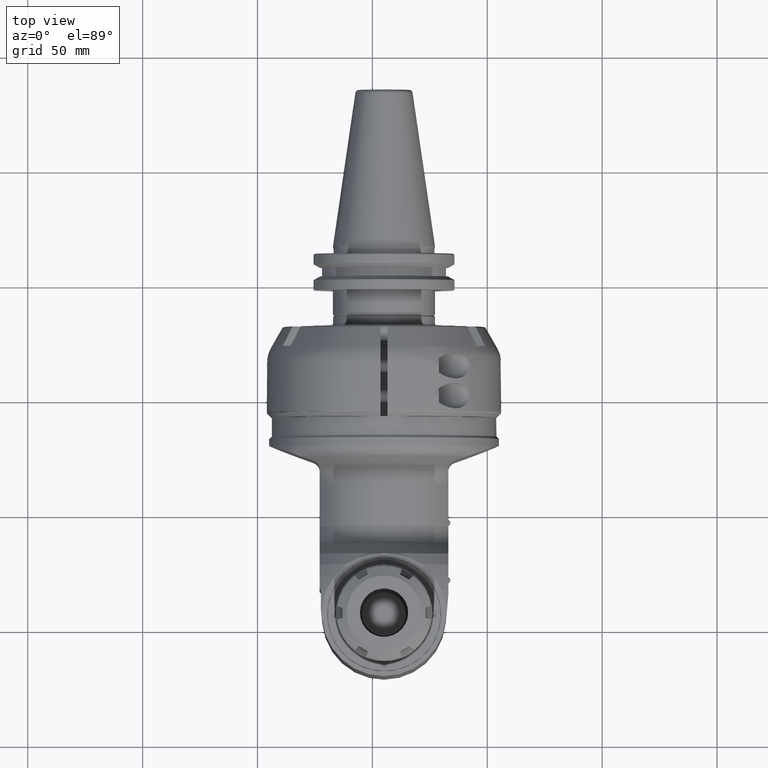
[diagram: clean part render]
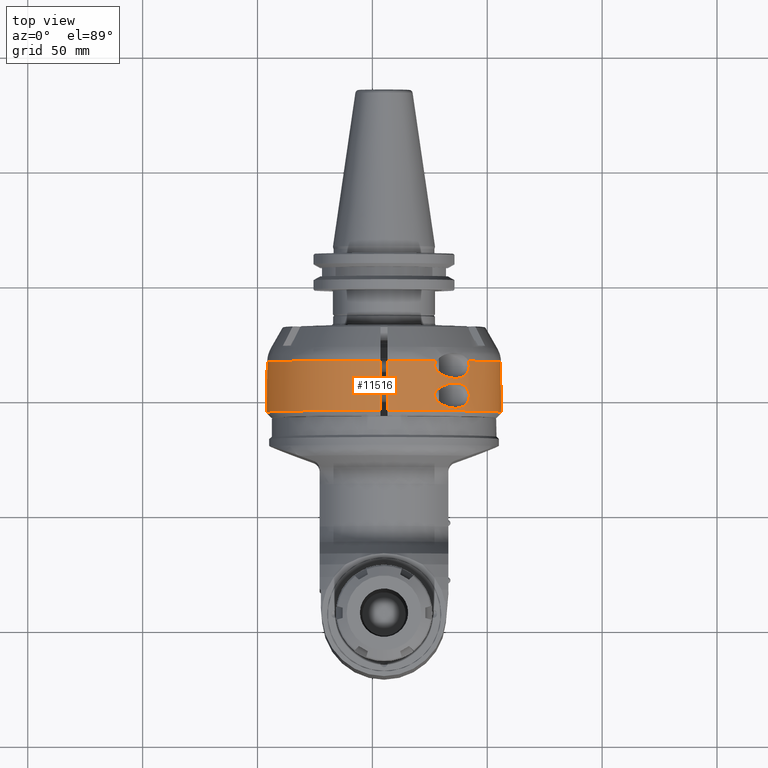
[diagram: same view with one face highlighted and labeled with its STEP entity id]
A machine part, top view. The second image highlights one B-rep face of the part: STEP entity #11516.
In plain terms, the highlighted cylindrical surface (partial cylindrical patch) has radius 51 mm, axis along (0, -1, 0).
Its self-contained STEP definition (entity closure, byte-faithful):
#80=ELLIPSE('',#12606,5.67912532921425,2.00787401574803);
#81=ELLIPSE('',#12607,5.67912532921425,2.00787401574803);
#344=FACE_BOUND('',#2592,.T.);
#601=B_SPLINE_CURVE_WITH_KNOTS('',3,(#19576,#19577,#19578,#19579,#19580,
#19581),.UNSPECIFIED.,.F.,.F.,(4,2,4),(-0.220144328878827,-0.201175489980687,
0.),.UNSPECIFIED.);
#602=B_SPLINE_CURVE_WITH_KNOTS('',3,(#19583,#19584,#19585,#19586,#19587,
#19588,#19589,#19590,#19591,#19592,#19593,#19594,#19595,#19596,#19597,#19598,
#19599,#19600,#19601,#19602,#19603,#19604,#19605,#19606,#19607,#19608),
 .UNSPECIFIED.,.F.,.F.,(4,2,2,2,2,2,2,2,2,2,2,2,4),(0.,0.201175489980687,
0.402350979961374,0.726790310303929,1.05122964064648,1.44743687444551,1.84364410824453,
2.06341028648597,2.1732933756067,2.28317646472742,2.39305955384814,2.50294264296886,
2.52975105249028),.UNSPECIFIED.);
#603=B_SPLINE_CURVE_WITH_KNOTS('',3,(#19630,#19631,#19632,#19633,#19634,
#19635,#19636,#19637,#19638,#19639,#19640,#19641,#19642,#19643,#19644,#19645,
#19646,#19647,#19648,#19649,#19650,#19651,#19652),.UNSPECIFIED.,.F.,.F.,
(4,2,2,2,2,3,2,2,2,2,4),(-1.23194682408093,-0.835739590281912,-0.439532356482891,
-0.219766178241446,-0.109883089120723,0.,0.0949450193758139,0.189890038751628,
0.520032016318137,0.865269466584616,1.2105069168511),.UNSPECIFIED.);
#604=B_SPLINE_CURVE_WITH_KNOTS('',3,(#19653,#19654,#19655,#19656,#19657,
#19658,#19659,#19660,#19661,#19662,#19663,#19664,#19665,#19666,#19667,#19668,
#19669,#19670),.UNSPECIFIED.,.F.,.F.,(4,2,2,2,2,2,2,2,4),(1.2105069168511,
1.53494624719365,1.8593855775362,2.06056106751689,2.26173655749758,2.46291204747827,
2.66408753745895,2.98852686780151,3.31296619814406),.UNSPECIFIED.);
#786=CYLINDRICAL_SURFACE('',#12600,2.00787401574803);
#1168=CIRCLE('',#12597,2.00787401574803);
#1171=CIRCLE('',#12601,2.00787401574803);
#1172=CIRCLE('',#12602,2.00787401574803);
#1173=CIRCLE('',#12603,2.00787401574803);
#1174=CIRCLE('',#12604,2.00787401574803);
#1175=CIRCLE('',#12605,2.00787401574803);
#1176=CIRCLE('',#12608,2.00787401574803);
#1177=CIRCLE('',#12609,2.00787401574803);
#1840=FACE_OUTER_BOUND('',#2591,.T.);
#2591=EDGE_LOOP('',(#8917,#8918,#8919,#8920,#8921,#8922,#8923,#8924,#8925,
#8926,#8927,#8928,#8929,#8930,#8931,#8932,#8933,#8934));
#2592=EDGE_LOOP('',(#8935,#8936));
#3329=LINE('',#19570,#4067);
#3330=LINE('',#19572,#4068);
#3331=LINE('',#19612,#4069);
#3332=LINE('',#19622,#4070);
#3333=LINE('',#19626,#4071);
#3334=LINE('',#19627,#4072);
#4067=VECTOR('',#14912,0.024994454375189);
#4068=VECTOR('',#14913,0.729346255774409);
#4069=VECTOR('',#14918,0.856144431699606);
#4070=VECTOR('',#14927,0.85614422250315);
#4071=VECTOR('',#14930,0.729346255774409);
#4072=VECTOR('',#14931,0.024994454375189);
#5015=VERTEX_POINT('',#19444);
#5016=VERTEX_POINT('',#19445);
#5031=VERTEX_POINT('',#19565);
#5032=VERTEX_POINT('',#19567);
#5033=VERTEX_POINT('',#19569);
#5034=VERTEX_POINT('',#19571);
#5035=VERTEX_POINT('',#19573);
#5036=VERTEX_POINT('',#19575);
#5037=VERTEX_POINT('',#19582);
#5038=VERTEX_POINT('',#19609);
#5039=VERTEX_POINT('',#19611);
#5040=VERTEX_POINT('',#19613);
#5041=VERTEX_POINT('',#19615);
#5042=VERTEX_POINT('',#19617);
#5043=VERTEX_POINT('',#19619);
#5044=VERTEX_POINT('',#19621);
#5045=VERTEX_POINT('',#19623);
#5046=VERTEX_POINT('',#19625);
#5047=VERTEX_POINT('',#19628);
#5048=VERTEX_POINT('',#19629);
#6414=EDGE_CURVE('',#5015,#5016,#1168,.T.);
#6430=EDGE_CURVE('',#5016,#5031,#1171,.T.);
#6431=EDGE_CURVE('',#5032,#5015,#1172,.T.);
#6432=EDGE_CURVE('',#5032,#5033,#3329,.T.);
#6433=EDGE_CURVE('',#5034,#5033,#3330,.T.);
#6434=EDGE_CURVE('',#5035,#5034,#1173,.T.);
#6435=EDGE_CURVE('',#5035,#5036,#601,.T.);
#6436=EDGE_CURVE('',#5036,#5037,#602,.T.);
#6437=EDGE_CURVE('',#5038,#5037,#1174,.T.);
#6438=EDGE_CURVE('',#5038,#5039,#3331,.T.);
#6439=EDGE_CURVE('',#5040,#5039,#1175,.T.);
#6440=EDGE_CURVE('',#5041,#5040,#80,.T.);
#6441=EDGE_CURVE('',#5042,#5041,#81,.T.);
#6442=EDGE_CURVE('',#5043,#5042,#1176,.T.);
#6443=EDGE_CURVE('',#5043,#5044,#3332,.T.);
#6444=EDGE_CURVE('',#5045,#5044,#1177,.T.);
#6445=EDGE_CURVE('',#5045,#5046,#3333,.T.);
#6446=EDGE_CURVE('',#5046,#5031,#3334,.T.);
#6447=EDGE_CURVE('',#5047,#5048,#603,.T.);
#6448=EDGE_CURVE('',#5048,#5047,#604,.T.);
#8917=ORIENTED_EDGE('',*,*,#6430,.F.);
#8918=ORIENTED_EDGE('',*,*,#6414,.F.);
#8919=ORIENTED_EDGE('',*,*,#6431,.F.);
#8920=ORIENTED_EDGE('',*,*,#6432,.T.);
#8921=ORIENTED_EDGE('',*,*,#6433,.F.);
#8922=ORIENTED_EDGE('',*,*,#6434,.F.);
#8923=ORIENTED_EDGE('',*,*,#6435,.T.);
#8924=ORIENTED_EDGE('',*,*,#6436,.T.);
#8925=ORIENTED_EDGE('',*,*,#6437,.F.);
#8926=ORIENTED_EDGE('',*,*,#6438,.T.);
#8927=ORIENTED_EDGE('',*,*,#6439,.F.);
#8928=ORIENTED_EDGE('',*,*,#6440,.F.);
#8929=ORIENTED_EDGE('',*,*,#6441,.F.);
#8930=ORIENTED_EDGE('',*,*,#6442,.F.);
#8931=ORIENTED_EDGE('',*,*,#6443,.T.);
#8932=ORIENTED_EDGE('',*,*,#6444,.F.);
#8933=ORIENTED_EDGE('',*,*,#6445,.T.);
#8934=ORIENTED_EDGE('',*,*,#6446,.T.);
#8935=ORIENTED_EDGE('',*,*,#6447,.T.);
#8936=ORIENTED_EDGE('',*,*,#6448,.T.);
#11516=ADVANCED_FACE('',(#1840,#344),#786,.T.);
#12597=AXIS2_PLACEMENT_3D('',#19446,#14891,#14892);
#12600=AXIS2_PLACEMENT_3D('',#19564,#14906,#14907);
#12601=AXIS2_PLACEMENT_3D('',#19566,#14908,#14909);
#12602=AXIS2_PLACEMENT_3D('',#19568,#14910,#14911);
#12603=AXIS2_PLACEMENT_3D('',#19574,#14914,#14915);
#12604=AXIS2_PLACEMENT_3D('',#19610,#14916,#14917);
#12605=AXIS2_PLACEMENT_3D('',#19614,#14919,#14920);
#12606=AXIS2_PLACEMENT_3D('',#19616,#14921,#14922);
#12607=AXIS2_PLACEMENT_3D('',#19618,#14923,#14924);
#12608=AXIS2_PLACEMENT_3D('',#19620,#14925,#14926);
#12609=AXIS2_PLACEMENT_3D('',#19624,#14928,#14929);
#14891=DIRECTION('center_axis',(0.,1.,0.));
#14892=DIRECTION('ref_axis',(0.54901960784313,0.,-0.835809470037146));
#14906=DIRECTION('center_axis',(0.,-1.,0.));
#14907=DIRECTION('ref_axis',(1.4663902280623E-10,0.,-1.));
#14908=DIRECTION('center_axis',(0.,1.,0.));
#14909=DIRECTION('ref_axis',(-0.54901960784313,0.,-0.835809470037146));
#14910=DIRECTION('center_axis',(0.,1.,0.));
#14911=DIRECTION('ref_axis',(0.567273574176089,0.,-0.823529411764684));
#14912=DIRECTION('',(7.27488584983E-14,1.,2.238426415332E-14));
#14913=DIRECTION('',(4.794383194822E-14,-1.,3.298535638037E-14));
#14914=DIRECTION('center_axis',(0.,1.,0.));
#14915=DIRECTION('ref_axis',(0.719066469693323,0.,0.694941301235422));
#14916=DIRECTION('center_axis',(0.,1.,0.));
#14917=DIRECTION('ref_axis',(0.0294117647058804,0.,0.999567380468613));
#14918=DIRECTION('',(1.273469652131E-9,-1.,-3.747115976057E-11));
#14919=DIRECTION('center_axis',(0.,-1.,0.));
#14920=DIRECTION('ref_axis',(0.999826388474475,0.,0.0186331132687895));
#14921=DIRECTION('center_axis',(0.612372435695813,-0.353553390593307,-0.707106781186515));
#14922=DIRECTION('ref_axis',(-0.23145502494317,-0.935414346693473,0.267261241912441));
#14923=DIRECTION('center_axis',(0.612372435695813,-0.353553390593307,0.707106781186515));
#14924=DIRECTION('ref_axis',(0.23145502494317,0.935414346693473,0.267261241912441));
#14925=DIRECTION('center_axis',(0.,-1.,0.));
#14926=DIRECTION('ref_axis',(0.,0.,-1.));
#14927=DIRECTION('',(4.970251645951E-10,1.,1.462479987387E-11));
#14928=DIRECTION('center_axis',(0.,1.,0.));
#14929=DIRECTION('ref_axis',(-0.567273574176089,0.,-0.823529411764684));
#14930=DIRECTION('',(-4.813560727601E-14,-1.,3.260180572479E-14));
#14931=DIRECTION('',(0.,-1.,2.238426415332E-14));
#19444=CARTESIAN_POINT('',(1.10236220472441,0.196850393700787,-1.67820011700354));
#19445=CARTESIAN_POINT('',(-1.10236220472441,0.196850393700787,-1.67820011700354));
#19446=CARTESIAN_POINT('Origin',(0.,0.196850393700787,0.));
#19564=CARTESIAN_POINT('Origin',(0.,1.22047244094488,0.));
#19565=CARTESIAN_POINT('',(-1.13901386940866,0.196850393700787,-1.65354330708661));
#19566=CARTESIAN_POINT('Origin',(0.,0.196850393700787,0.));
#19567=CARTESIAN_POINT('',(1.13901386940866,0.196850393700787,-1.65354330708661));
#19568=CARTESIAN_POINT('Origin',(0.,0.196850393700787,0.));
#19569=CARTESIAN_POINT('',(1.13901386940866,0.221844848075984,-1.65354330708661));
#19570=CARTESIAN_POINT('',(1.13901386940866,0.196850393700787,-1.65354330708661));
#19571=CARTESIAN_POINT('',(1.13901386940866,0.951191103850394,-1.65354330708661));
#19572=CARTESIAN_POINT('',(1.13901386940866,0.951191103850394,-1.65354330708661));
#19573=CARTESIAN_POINT('',(1.44379488009252,0.951191103854331,1.39535458122087));
#19574=CARTESIAN_POINT('Origin',(0.,0.951191103851969,0.));
#19575=CARTESIAN_POINT('',(1.4604123509939,0.866141732283465,1.37795276703543));
#19576=CARTESIAN_POINT('Ctrl Pts',(1.44379488009305,0.95119110385468,1.39535458122056));
#19577=CARTESIAN_POINT('Ctrl Pts',(1.44472479804332,0.948938218856057,1.39439238079239));
#19578=CARTESIAN_POINT('Ctrl Pts',(1.44562017584725,0.946658605356445,1.39346399512748));
#19579=CARTESIAN_POINT('Ctrl Pts',(1.45559153260272,0.919919798512047,1.3831066342035));
#19580=CARTESIAN_POINT('Ctrl Pts',(1.4604123509939,0.892542715220562,1.37795276703543));
#19581=CARTESIAN_POINT('Ctrl Pts',(1.4604123509939,0.866141732283465,1.37795276703543));
#19582=CARTESIAN_POINT('',(0.902484810701969,0.951191103851969,1.79362181899291));
#19583=CARTESIAN_POINT('Ctrl Pts',(1.4604123509939,0.866141732283465,1.37795276703543));
#19584=CARTESIAN_POINT('Ctrl Pts',(1.4604123509939,0.839740749346367,1.37795276703543));
#19585=CARTESIAN_POINT('Ctrl Pts',(1.45559153260272,0.812363666054882,1.3831066342035));
#19586=CARTESIAN_POINT('Ctrl Pts',(1.43736719231406,0.763493975921901,1.40203646237032));
#19587=CARTESIAN_POINT('Ctrl Pts',(1.42396651543218,0.741968848736813,1.41573110566628));
#19588=CARTESIAN_POINT('Ctrl Pts',(1.3859605062458,0.698259522023266,1.45318837533328));
#19589=CARTESIAN_POINT('Ctrl Pts',(1.35594462519938,0.678775531929512,1.48151648211885));
#19590=CARTESIAN_POINT('Ctrl Pts',(1.29004224478356,0.654442366682728,1.53924265034148));
#19591=CARTESIAN_POINT('Ctrl Pts',(1.25412508300605,0.649606299212598,1.56861122307841));
#19592=CARTESIAN_POINT('Ctrl Pts',(1.17902296255044,0.649606299212598,1.62608931787607));
#19593=CARTESIAN_POINT('Ctrl Pts',(1.13299265935012,0.656746435275783,1.65856546470041));
#19594=CARTESIAN_POINT('Ctrl Pts',(1.04161336696342,0.684927759632745,1.71742637219514));
#19595=CARTESIAN_POINT('Ctrl Pts',(0.996211399320057,0.705667499707285,
1.74387279868384));
#19596=CARTESIAN_POINT('Ctrl Pts',(0.935531085032465,0.747733616580978,
1.77677972452765));
#19597=CARTESIAN_POINT('Ctrl Pts',(0.913103042451295,0.766724820883149,
1.78834175312381));
#19598=CARTESIAN_POINT('Ctrl Pts',(0.887445607376041,0.800352287029037,
1.80113566636076));
#19599=CARTESIAN_POINT('Ctrl Pts',(0.88023021326652,0.812405058652633,1.80465656636114));
#19600=CARTESIAN_POINT('Ctrl Pts',(0.870026724944561,0.838090697919794,
1.80959756231383));
#19601=CARTESIAN_POINT('Ctrl Pts',(0.867036021852556,0.851721379380483,
1.81102363317717));
#19602=CARTESIAN_POINT('Ctrl Pts',(0.867036021852556,0.880562085186447,
1.81102363317717));
#19603=CARTESIAN_POINT('Ctrl Pts',(0.870026724944561,0.894192766647135,
1.80959756231383));
#19604=CARTESIAN_POINT('Ctrl Pts',(0.88023021326652,0.919878405914296,1.80465656636114));
#19605=CARTESIAN_POINT('Ctrl Pts',(0.887445607376041,0.931931177537893,
1.80113566636076));
#19606=CARTESIAN_POINT('Ctrl Pts',(0.898084651957616,0.945875054252076,
1.7958305759298));
#19607=CARTESIAN_POINT('Ctrl Pts',(0.900250636568581,0.948559021219207,
1.79474597359393));
#19608=CARTESIAN_POINT('Ctrl Pts',(0.902484810701992,0.951191103852053,
1.79362181899316));
#19609=CARTESIAN_POINT('',(0.0590551170510557,0.951191103851969,2.00700537026339));
#19610=CARTESIAN_POINT('Origin',(0.,0.951191103851969,0.));
#19611=CARTESIAN_POINT('',(0.0590551175829522,0.0950477777697542,2.00700537024774));
#19612=CARTESIAN_POINT('',(0.0590551159653937,0.951191937392913,2.00700537029528));
#19613=CARTESIAN_POINT('',(2.00752542567717,0.0950477780458268,0.0374129439651102));
#19614=CARTESIAN_POINT('Origin',(0.,0.0950477780461811,0.));
#19615=CARTESIAN_POINT('',(2.00787401574803,0.170477441689843,0.));
#19616=CARTESIAN_POINT('Origin',(0.,-3.30726236878297,0.));
#19617=CARTESIAN_POINT('',(2.00752542567717,0.0950477780459842,-0.0374129439650197));
#19618=CARTESIAN_POINT('Origin',(0.,-3.30726236878305,0.));
#19619=CARTESIAN_POINT('',(-0.0590551175448827,0.0950477777498607,2.00700537024883));
#19620=CARTESIAN_POINT('Origin',(0.,0.0950477780461811,0.));
#19621=CARTESIAN_POINT('',(-0.0590551173321203,0.951191104261162,2.00700537025509));
#19622=CARTESIAN_POINT('',(-0.0590551169795276,0.0950474860932283,2.00700537026535));
#19623=CARTESIAN_POINT('',(-1.13901386940866,0.951191103850394,-1.65354330708661));
#19624=CARTESIAN_POINT('Origin',(0.,0.951191103851969,0.));
#19625=CARTESIAN_POINT('',(-1.13901386940866,0.221844848075984,-1.65354330708661));
#19626=CARTESIAN_POINT('',(-1.13901386940866,0.951191103850394,-1.65354330708661));
#19627=CARTESIAN_POINT('',(-1.13901386940866,0.221844848075984,-1.65354330708661));
#19628=CARTESIAN_POINT('',(1.22031366575905,0.137795275590551,1.5944882001063));
#19629=CARTESIAN_POINT('',(1.22031366575889,0.570866141732283,1.5944882001063));
#19630=CARTESIAN_POINT('Ctrl Pts',(1.22031366575889,0.137795275590551,1.5944882001063));
#19631=CARTESIAN_POINT('Ctrl Pts',(1.17902296255044,0.137795275590551,1.62608931787607));
#19632=CARTESIAN_POINT('Ctrl Pts',(1.13299265935012,0.144935411653736,1.65856546470041));
#19633=CARTESIAN_POINT('Ctrl Pts',(1.04161336696342,0.173116736010698,1.71742637219514));
#19634=CARTESIAN_POINT('Ctrl Pts',(0.996211399320057,0.193856476085238,
1.74387279868384));
#19635=CARTESIAN_POINT('Ctrl Pts',(0.935531085032465,0.235922592958931,
1.77677972452765));
#19636=CARTESIAN_POINT('Ctrl Pts',(0.913103042451295,0.254913797261102,
1.78834175312381));
#19637=CARTESIAN_POINT('Ctrl Pts',(0.887445607376041,0.288541263406989,
1.80113566636076));
#19638=CARTESIAN_POINT('Ctrl Pts',(0.88023021326652,0.300594035030586,1.80465656636114));
#19639=CARTESIAN_POINT('Ctrl Pts',(0.870026724944561,0.326279674297747,
1.80959756231383));
#19640=CARTESIAN_POINT('Ctrl Pts',(0.867036021852556,0.339910355758435,
1.81102363317717));
#19641=CARTESIAN_POINT('Ctrl Pts',(0.867036021852556,0.354330708661417,
1.81102363317717));
#19642=CARTESIAN_POINT('Ctrl Pts',(0.867036021852556,0.366790684957456,
1.81102363317717));
#19643=CARTESIAN_POINT('Ctrl Pts',(0.869469121530989,0.379988443982063,
1.8098638351706));
#19644=CARTESIAN_POINT('Ctrl Pts',(0.878577975979835,0.404689907149554,
1.8054596078077));
#19645=CARTESIAN_POINT('Ctrl Pts',(0.88516981604866,0.416230027309861,1.80224639793977));
#19646=CARTESIAN_POINT('Ctrl Pts',(0.916140320237773,0.460013201188597,
1.78688718776245));
#19647=CARTESIAN_POINT('Ctrl Pts',(0.954827738202063,0.488305505770262,
1.7667407491806));
#19648=CARTESIAN_POINT('Ctrl Pts',(1.02403627645108,0.527458367232658,1.72758788771821));
#19649=CARTESIAN_POINT('Ctrl Pts',(1.06408557071184,0.543644144182053,1.70340302699049));
#19650=CARTESIAN_POINT('Ctrl Pts',(1.14423048399291,0.565398300561471,1.65063520400774));
#19651=CARTESIAN_POINT('Ctrl Pts',(1.18433477421087,0.570866141732283,1.62202401569401));
#19652=CARTESIAN_POINT('Ctrl Pts',(1.22031366575889,0.570866141732283,1.5944882001063));
#19653=CARTESIAN_POINT('Ctrl Pts',(1.22031366575889,0.570866141732283,1.5944882001063));
#19654=CARTESIAN_POINT('Ctrl Pts',(1.25412508300605,0.570866141732283,1.56861122307841));
#19655=CARTESIAN_POINT('Ctrl Pts',(1.29004224478356,0.566030074262154,1.53924265034148));
#19656=CARTESIAN_POINT('Ctrl Pts',(1.35594462519938,0.54169690901537,1.48151648211885));
#19657=CARTESIAN_POINT('Ctrl Pts',(1.3859605062458,0.522212918921616,1.45318837533328));
#19658=CARTESIAN_POINT('Ctrl Pts',(1.42396651543218,0.478503592208069,1.41573110566628));
#19659=CARTESIAN_POINT('Ctrl Pts',(1.43736719231406,0.456978465022981,1.40203646237032));
#19660=CARTESIAN_POINT('Ctrl Pts',(1.45559153260272,0.40810877489,1.3831066342035));
#19661=CARTESIAN_POINT('Ctrl Pts',(1.4604123509939,0.380731691598515,1.37795276703543));
#19662=CARTESIAN_POINT('Ctrl Pts',(1.4604123509939,0.327929725724319,1.37795276703543));
#19663=CARTESIAN_POINT('Ctrl Pts',(1.45559153260272,0.300552642432835,1.3831066342035));
#19664=CARTESIAN_POINT('Ctrl Pts',(1.43736719231406,0.251682952299854,1.40203646237032));
#19665=CARTESIAN_POINT('Ctrl Pts',(1.42396651543218,0.230157825114766,1.41573110566628));
#19666=CARTESIAN_POINT('Ctrl Pts',(1.3859605062458,0.186448498401219,1.45318837533328));
#19667=CARTESIAN_POINT('Ctrl Pts',(1.35594462519938,0.166964508307465,1.48151648211885));
#19668=CARTESIAN_POINT('Ctrl Pts',(1.29004224478356,0.142631343060681,1.53924265034148));
#19669=CARTESIAN_POINT('Ctrl Pts',(1.25412508300605,0.137795275590551,1.56861122307841));
#19670=CARTESIAN_POINT('Ctrl Pts',(1.22031366575889,0.137795275590551,1.5944882001063));